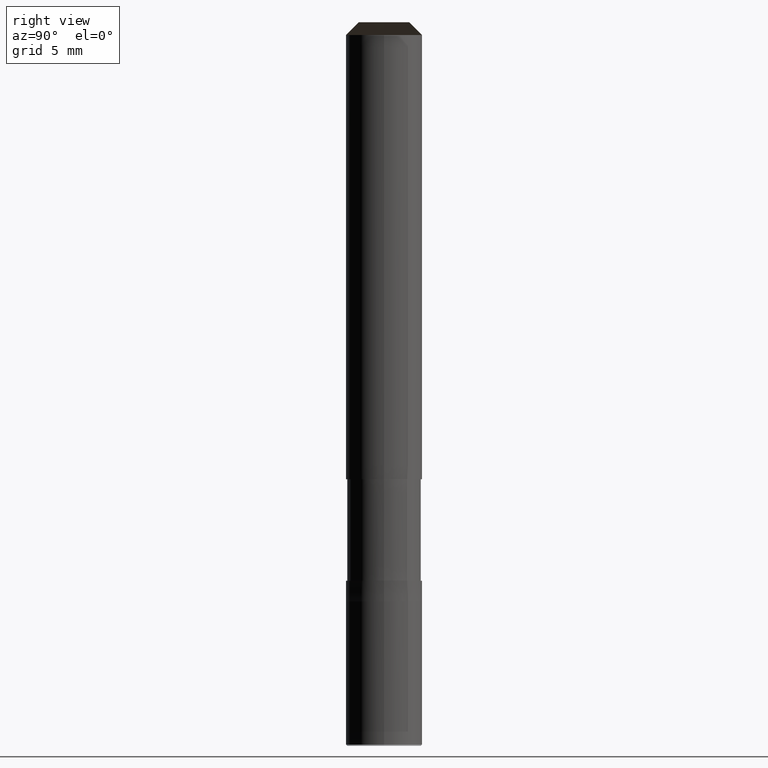
[diagram: clean part render]
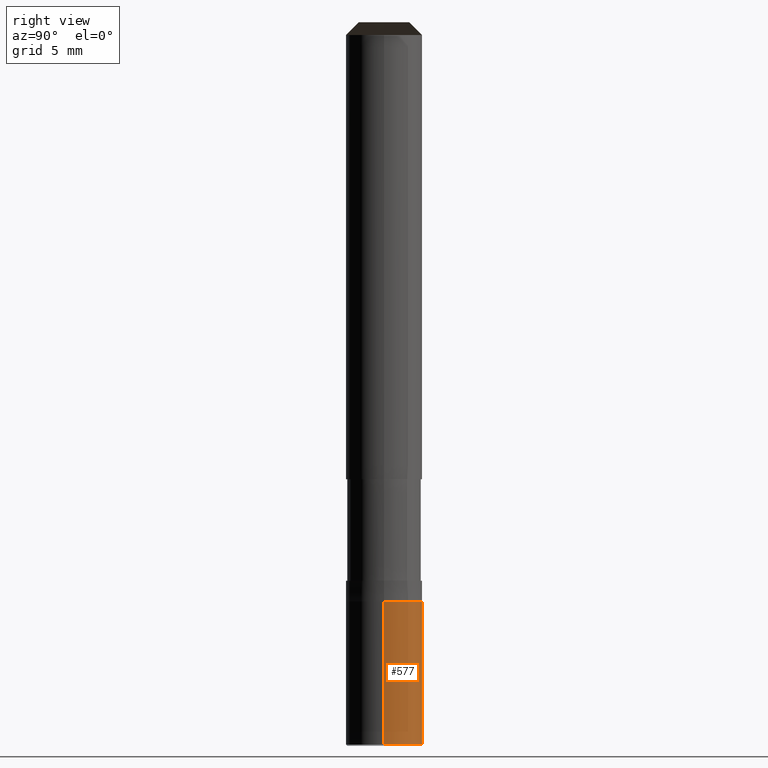
[diagram: same view with one face highlighted and labeled with its STEP entity id]
A machine part, right view. The second image highlights one B-rep face of the part: STEP entity #577.
In plain terms, the highlighted face is a freeform B-spline surface patch.
Its self-contained STEP definition (entity closure, byte-faithful):
#448=CARTESIAN_POINT('',(3.0,0.0,-20.9));
#449=CARTESIAN_POINT('',(3.0,3.0,-20.9));
#450=CARTESIAN_POINT('',(0.0,3.0,-20.9));
#451=CARTESIAN_POINT('',(-3.0,3.0,-20.9));
#452=CARTESIAN_POINT('',(-3.0,0.0,-20.9));
#453=CARTESIAN_POINT('',(3.0,0.0,-9.625));
#454=CARTESIAN_POINT('',(3.0,3.0,-9.625));
#455=CARTESIAN_POINT('',(0.0,3.0,-9.625));
#456=CARTESIAN_POINT('',(-3.0,3.0,-9.625));
#457=CARTESIAN_POINT('',(-3.0,0.0,-9.625));
#558=(
BOUNDED_SURFACE()
B_SPLINE_SURFACE(1,2,(
(#448,#449,#450,#451,#452),
(#453,#454,#455,#456,#457)
), .UNSPECIFIED.,.F.,.F.,.F.)
B_SPLINE_SURFACE_WITH_KNOTS((2,2),(3,2,3),(
0.0,1.0),(
0.0,0.5,1.0), .UNSPECIFIED.)
GEOMETRIC_REPRESENTATION_ITEM()
RATIONAL_B_SPLINE_SURFACE(((1.0,0.707106781187,1.0,0.707106781187,1.0),
(1.0,0.707106781187,1.0,0.707106781187,1.0)
))
REPRESENTATION_ITEM('')
SURFACE()
);
#559=(
BOUNDED_CURVE()
B_SPLINE_CURVE(2,(#452,#451,#450,#449,#448),.UNSPECIFIED.,.F.,.F.)
B_SPLINE_CURVE_WITH_KNOTS((3,2,3),
(0.0,0.5,1.0),.UNSPECIFIED.)
CURVE()
GEOMETRIC_REPRESENTATION_ITEM()
RATIONAL_B_SPLINE_CURVE((1.0,0.707106781187,1.0,0.707106781187,1.0))
REPRESENTATION_ITEM('')
);
#560=(
BOUNDED_CURVE()
B_SPLINE_CURVE(1,(#448,#453),.UNSPECIFIED.,.F.,.F.)
B_SPLINE_CURVE_WITH_KNOTS((2,2),
(0.0,1.0),.UNSPECIFIED.)
CURVE()
GEOMETRIC_REPRESENTATION_ITEM()
RATIONAL_B_SPLINE_CURVE((1.0,1.0))
REPRESENTATION_ITEM('')
);
#561=(
BOUNDED_CURVE()
B_SPLINE_CURVE(2,(#453,#454,#455,#456,#457),.UNSPECIFIED.,.F.,.F.)
B_SPLINE_CURVE_WITH_KNOTS((3,2,3),
(0.0,0.5,1.0),.UNSPECIFIED.)
CURVE()
GEOMETRIC_REPRESENTATION_ITEM()
RATIONAL_B_SPLINE_CURVE((1.0,0.707106781187,1.0,0.707106781187,1.0))
REPRESENTATION_ITEM('')
);
#562=(
BOUNDED_CURVE()
B_SPLINE_CURVE(1,(#457,#452),.UNSPECIFIED.,.F.,.F.)
B_SPLINE_CURVE_WITH_KNOTS((2,2),
(0.0,1.0),.UNSPECIFIED.)
CURVE()
GEOMETRIC_REPRESENTATION_ITEM()
RATIONAL_B_SPLINE_CURVE((1.0,1.0))
REPRESENTATION_ITEM('')
);
#563=VERTEX_POINT('',#448);
#564=VERTEX_POINT('',#452);
#565=VERTEX_POINT('',#453);
#566=VERTEX_POINT('',#457);
#567=EDGE_CURVE('',#564,#563,#559,.T.);
#568=EDGE_CURVE('',#563,#565,#560,.T.);
#569=EDGE_CURVE('',#565,#566,#561,.T.);
#570=EDGE_CURVE('',#566,#564,#562,.T.);
#571=ORIENTED_EDGE('',*,*,#567,.T.);
#572=ORIENTED_EDGE('',*,*,#568,.T.);
#573=ORIENTED_EDGE('',*,*,#569,.T.);
#574=ORIENTED_EDGE('',*,*,#570,.T.);
#575=EDGE_LOOP('',(#571,#572,#573,#574));
#576=FACE_OUTER_BOUND('',#575,.T.);
#577=ADVANCED_FACE('',(#576),#558,.T.);